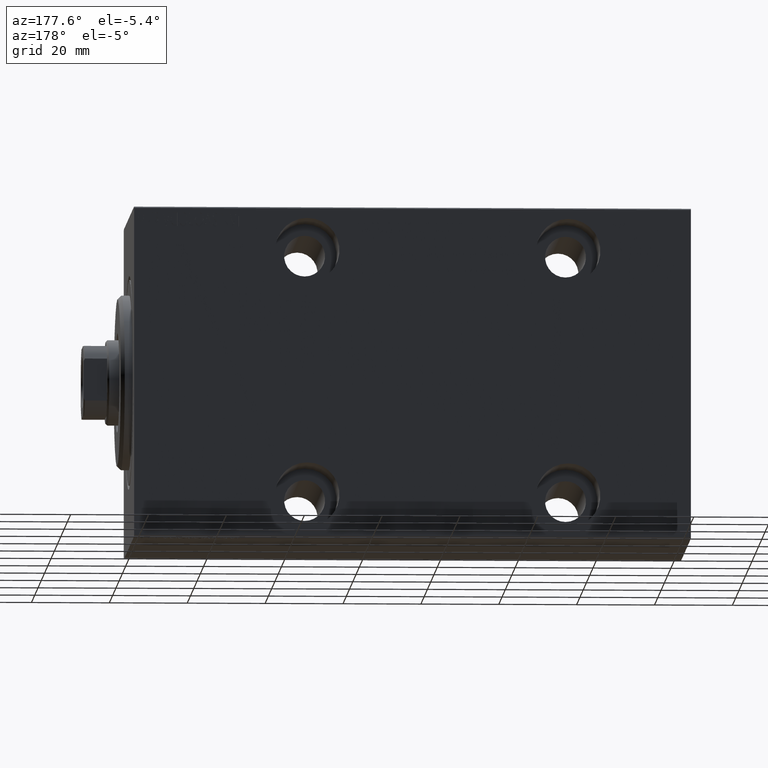
[diagram: clean part render]
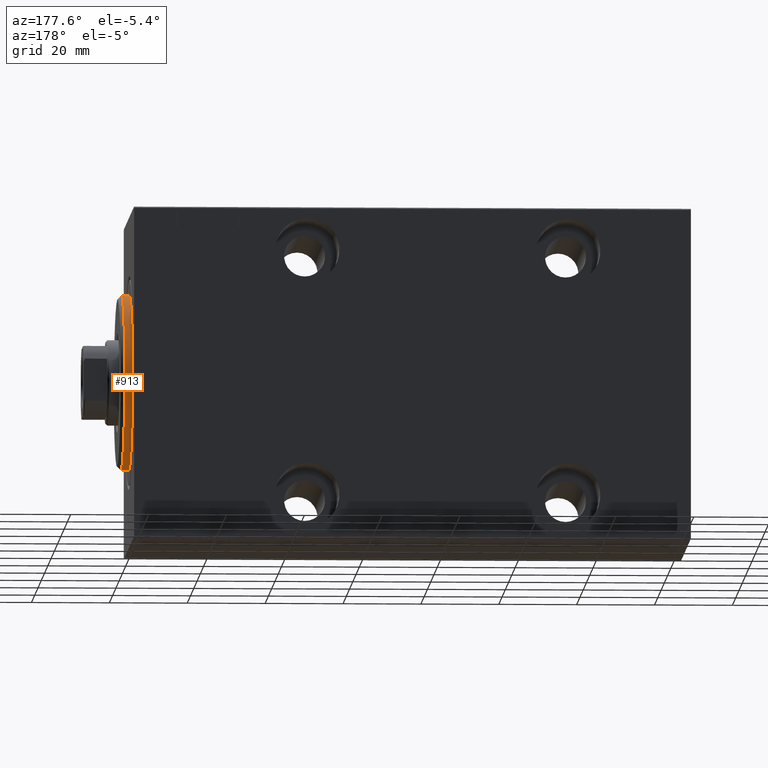
[diagram: same view with one face highlighted and labeled with its STEP entity id]
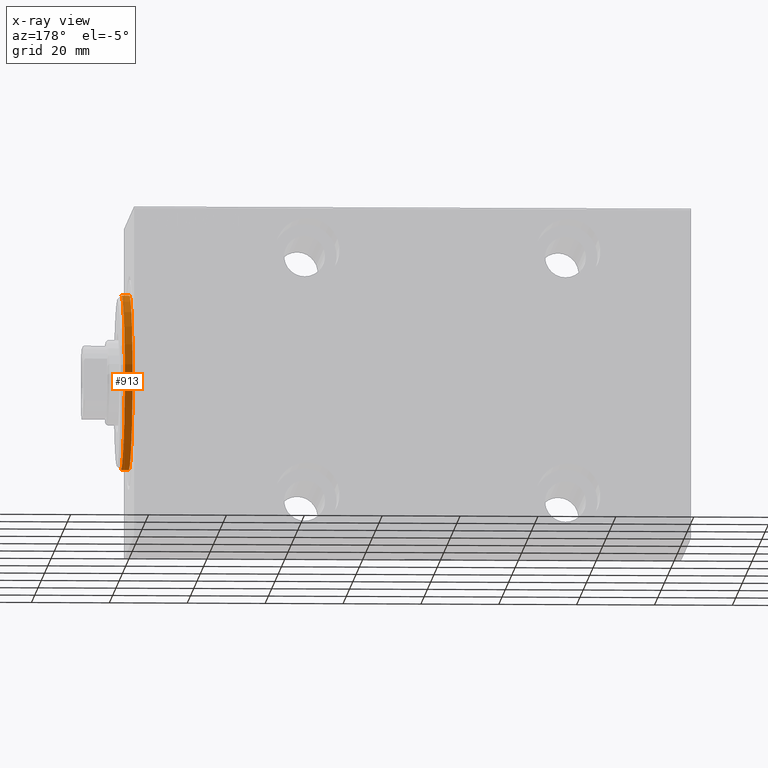
[diagram: x-ray of the same camera — body ghosted, the highlighted face saturated]
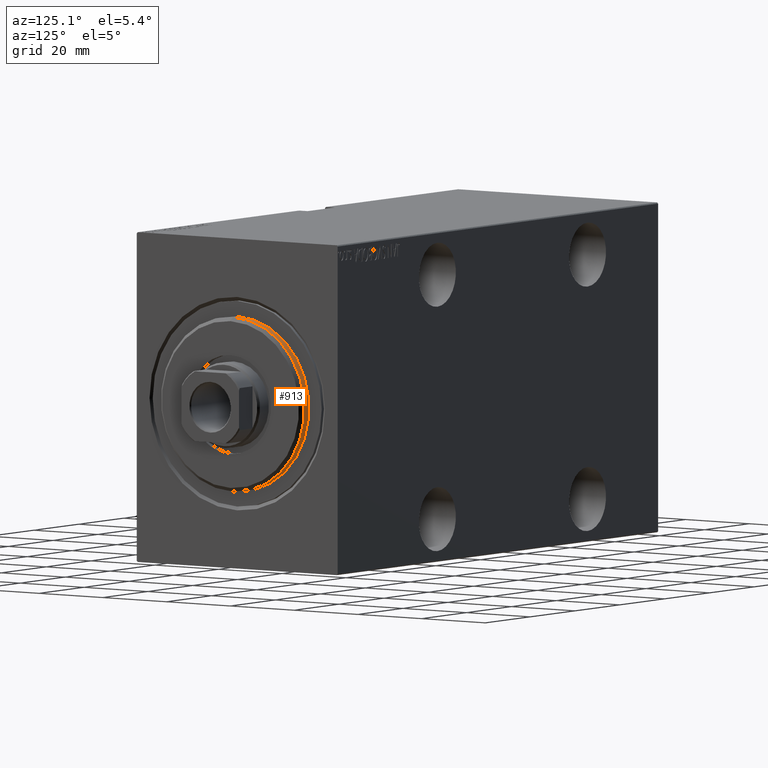
[diagram: same view with one face highlighted and labeled with its STEP entity id]
A machine part, auxiliary view. The second image highlights one B-rep face of the part: STEP entity #913.
The next image is the same camera in x-ray: the body ghosted, the highlighted face saturated — about 0% of this face is hidden behind the body in this view.
A second angle (auxiliary view) of the same face is appended — the face is thin or edge-on in the first view.
In plain terms, the highlighted cylindrical surface (partial cylindrical patch) has radius 22.5 mm, axis along (-1, -0, -0).
Its self-contained STEP definition (entity closure, byte-faithful):
#826 = CARTESIAN_POINT ( 'NONE',  ( 3.000000000000000000, 0.000000000000000000, 22.50000000000000355 ) ) ;
#913 = ADVANCED_FACE ( 'NONE', ( #4465 ), #17690, .T. ) ;
#1199 = DIRECTION ( 'NONE',  ( 0.000000000000000000, 0.000000000000000000, 1.000000000000000000 ) ) ;
#1543 = EDGE_LOOP ( 'NONE', ( #13344, #11500, #26684, #15173 ) ) ;
#3675 = AXIS2_PLACEMENT_3D ( 'NONE', #5099, #30913, #1199 ) ;
#4465 = FACE_OUTER_BOUND ( 'NONE', #1543, .T. ) ;
#5065 = CARTESIAN_POINT ( 'NONE',  ( 0.000000000000000000, 2.755455298081545172E-15, -22.50000000000000355 ) ) ;
#5099 = CARTESIAN_POINT ( 'NONE',  ( 3.000000000000000000, 0.000000000000000000, 0.000000000000000000 ) ) ;
#6005 = DIRECTION ( 'NONE',  ( 0.000000000000000000, 0.000000000000000000, -1.000000000000000000 ) ) ;
#7507 = CARTESIAN_POINT ( 'NONE',  ( 2.000000000000006217, 2.755455298081545172E-15, -22.50000000000000355 ) ) ;
#8940 = CARTESIAN_POINT ( 'NONE',  ( 2.000000000000006217, 0.000000000000000000, 22.50000000000000355 ) ) ;
#9274 = VERTEX_POINT ( 'NONE', #21890 ) ;
#11500 = ORIENTED_EDGE ( 'NONE', *, *, #37411, .T. ) ;
#12934 = CARTESIAN_POINT ( 'NONE',  ( 0.000000000000000000, 0.000000000000000000, 0.000000000000000000 ) ) ;
#13344 = ORIENTED_EDGE ( 'NONE', *, *, #35031, .T. ) ;
#13992 = CIRCLE ( 'NONE', #18131, 22.50000000000000355 ) ;
#14063 = VECTOR ( 'NONE', #18591, 1000.000000000000000 ) ;
#14254 = VERTEX_POINT ( 'NONE', #5065 ) ;
#15173 = ORIENTED_EDGE ( 'NONE', *, *, #40891, .F. ) ;
#17365 = CIRCLE ( 'NONE', #25648, 22.50000000000000355 ) ;
#17690 = CYLINDRICAL_SURFACE ( 'NONE', #3675, 22.50000000000000355 ) ;
#17953 = CARTESIAN_POINT ( 'NONE',  ( 3.000000000000000000, 2.755455298081545172E-15, -22.50000000000000355 ) ) ;
#18131 = AXIS2_PLACEMENT_3D ( 'NONE', #42098, #29525, #42311 ) ;
#18591 = DIRECTION ( 'NONE',  ( -1.000000000000000000, -0.000000000000000000, -0.000000000000000000 ) ) ;
#20135 = VERTEX_POINT ( 'NONE', #8940 ) ;
#21890 = CARTESIAN_POINT ( 'NONE',  ( 0.000000000000000000, 0.000000000000000000, 22.50000000000000355 ) ) ;
#22491 = VECTOR ( 'NONE', #34020, 1000.000000000000000 ) ;
#25648 = AXIS2_PLACEMENT_3D ( 'NONE', #12934, #26165, #6005 ) ;
#26165 = DIRECTION ( 'NONE',  ( 1.000000000000000000, -0.000000000000000000, 0.000000000000000000 ) ) ;
#26684 = ORIENTED_EDGE ( 'NONE', *, *, #31823, .T. ) ;
#27282 = VERTEX_POINT ( 'NONE', #7507 ) ;
#28776 = LINE ( 'NONE', #17953, #14063 ) ;
#29525 = DIRECTION ( 'NONE',  ( -1.000000000000000000, 0.000000000000000000, 0.000000000000000000 ) ) ;
#30542 = LINE ( 'NONE', #826, #22491 ) ;
#30913 = DIRECTION ( 'NONE',  ( -1.000000000000000000, -0.000000000000000000, -0.000000000000000000 ) ) ;
#31823 = EDGE_CURVE ( 'NONE', #14254, #9274, #17365, .T. ) ;
#34020 = DIRECTION ( 'NONE',  ( -1.000000000000000000, -0.000000000000000000, -0.000000000000000000 ) ) ;
#35031 = EDGE_CURVE ( 'NONE', #20135, #27282, #13992, .T. ) ;
#37411 = EDGE_CURVE ( 'NONE', #27282, #14254, #28776, .T. ) ;
#40891 = EDGE_CURVE ( 'NONE', #20135, #9274, #30542, .T. ) ;
#42098 = CARTESIAN_POINT ( 'NONE',  ( 2.000000000000006217, 0.000000000000000000, 0.000000000000000000 ) ) ;
#42311 = DIRECTION ( 'NONE',  ( 0.000000000000000000, 0.000000000000000000, -1.000000000000000000 ) ) ;